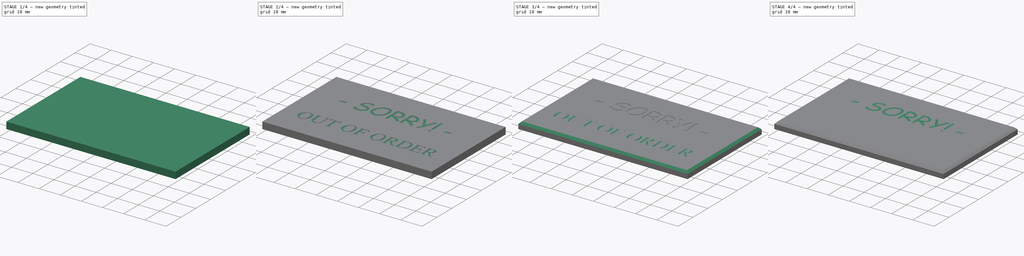
[diagram: build sequence overview — one tinted view per stage of 4, left to right]
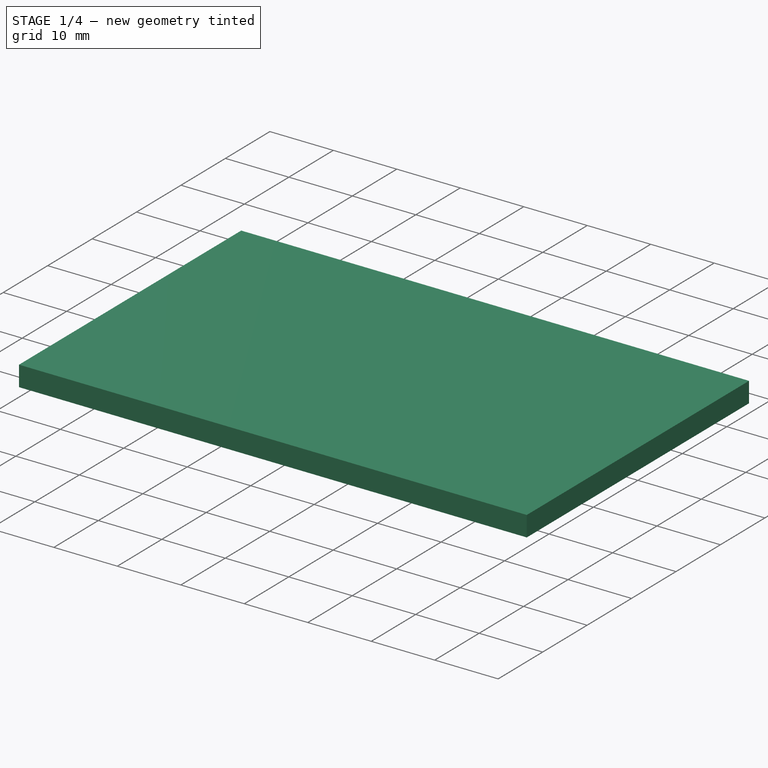
[diagram: stage 1 of 4 — iso view after this stage's code; geometry added in this stage tinted green]
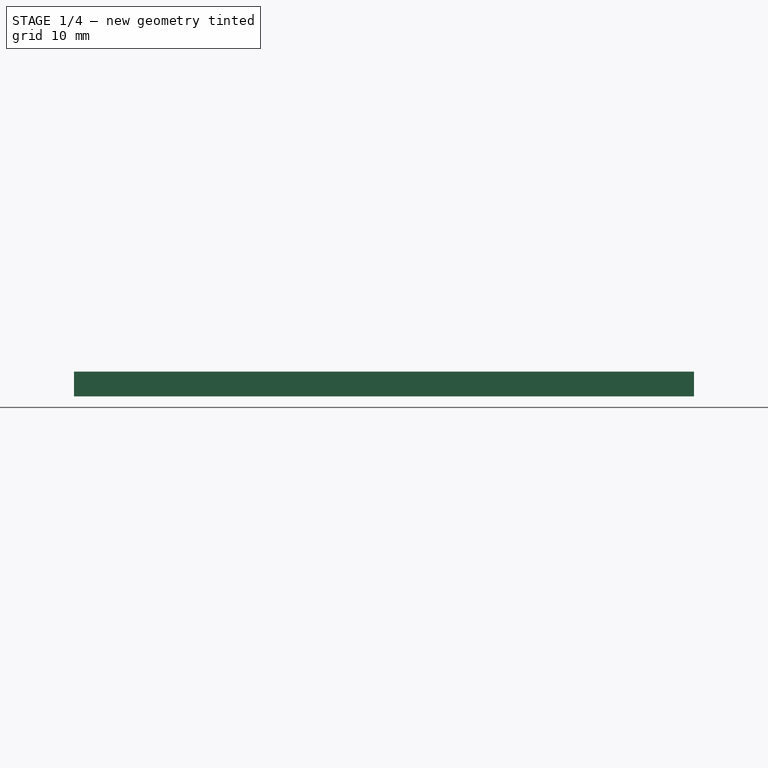
[diagram: stage 1 of 4 — front view after this stage's code; geometry added in this stage tinted green]
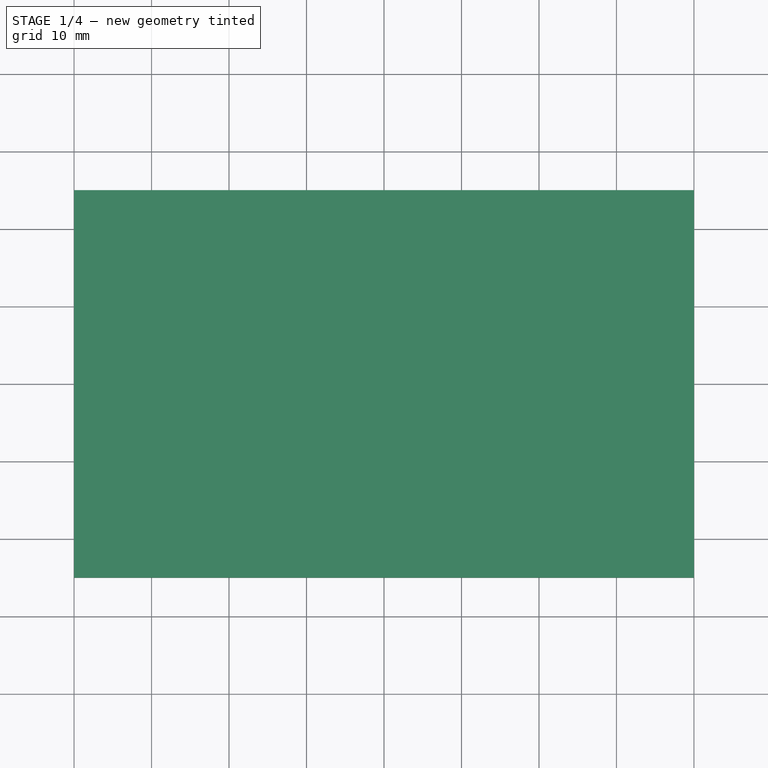
[diagram: stage 1 of 4 — top view after this stage's code; geometry added in this stage tinted green]
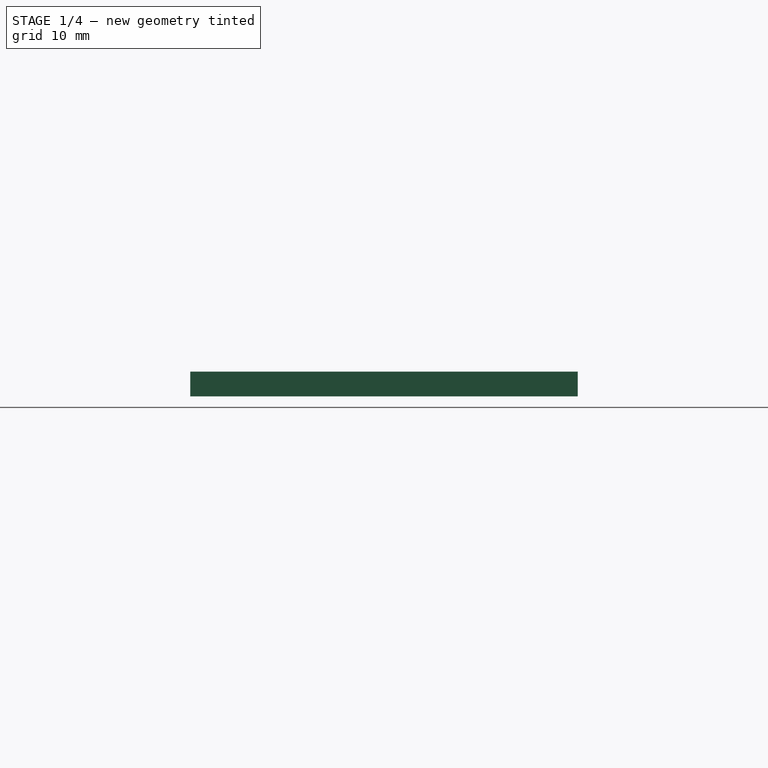
[diagram: stage 1 of 4 — right view after this stage's code; geometry added in this stage tinted green]
FCSTD DOCUMENT  (FreeCAD 1.0R39319 (Git))
Label: sign
License: All rights reserved
LicenseURL: https://en.wikipedia.org/wiki/All_rights_reserved
objects: PartDesign::Pad×6, Part::Part2DObjectPython×4, Sketcher::SketchObject×3, PartDesign::Body×3, PartDesign::Pocket×2, PartDesign::Chamfer×1
note: 40 computed .brp shape members not serialized (recipe doc carries the construction recipe); baked Part::Feature solids carry a one-line shape summary decoded from their .brp

FEATURE [Sketcher::SketchObject] Sketch
  ArcFitTolerance = 1e-06
  AttachmentSupport = -> [XY_Plane]
  FullyConstrained = true
  MakeInternals = false
  MapMode = 5
  sketch-geometry (4):
    g0: LineSegment StartX=-40 StartY=25 StartZ=0 EndX=-40 EndY=-25 EndZ=0
    g1: LineSegment StartX=-40 StartY=-25 StartZ=0 EndX=40 EndY=-25 EndZ=0
    g2: LineSegment StartX=40 StartY=-25 StartZ=0 EndX=40 EndY=25 EndZ=0
    g3: LineSegment StartX=40 StartY=25 StartZ=0 EndX=-40 EndY=25 EndZ=0
  constraints (11):
    c: Coincident(g0,g1)
    c: Coincident(g1,g2)
    c: Coincident(g2,g3)
    c: Coincident(g3,g0)
    c: Vertical(g0)
    c: Vertical(g2)
    c: Horizontal(g1)
    c: Horizontal(g3)
    c: Symmetric(g1,g0,g-1)
    c: DistanceX(g3,g3) = 80
    c: DistanceY(g0,g0) = 50
FEATURE [PartDesign::Pad] Pad
  Direction = (0,0,1)
  Length = 3
  Length2 = 10
  Profile = -> Sketch
  ReferenceAxis = -> Sketch [N_Axis]
  Refine = true
  Reversed = true
  Suppressed = false
  Type = 0
FEATURE [PartDesign::Body] Body001  label="Sorry"
  AllowCompound = false
  Group = -> [Sketch001,Pad003,ShapeString001,Pad004]
  Origin = -> Origin001
  Tip = -> Pad004
FEATURE [PartDesign::Pad] Pad005
  BaseFeature = -> Pad
  Direction = (0,0,1)
  Length = 0.2
  Length2 = 10
  Profile = -> Pad [Face5]
  Refine = true
  Suppressed = false
  Type = 0
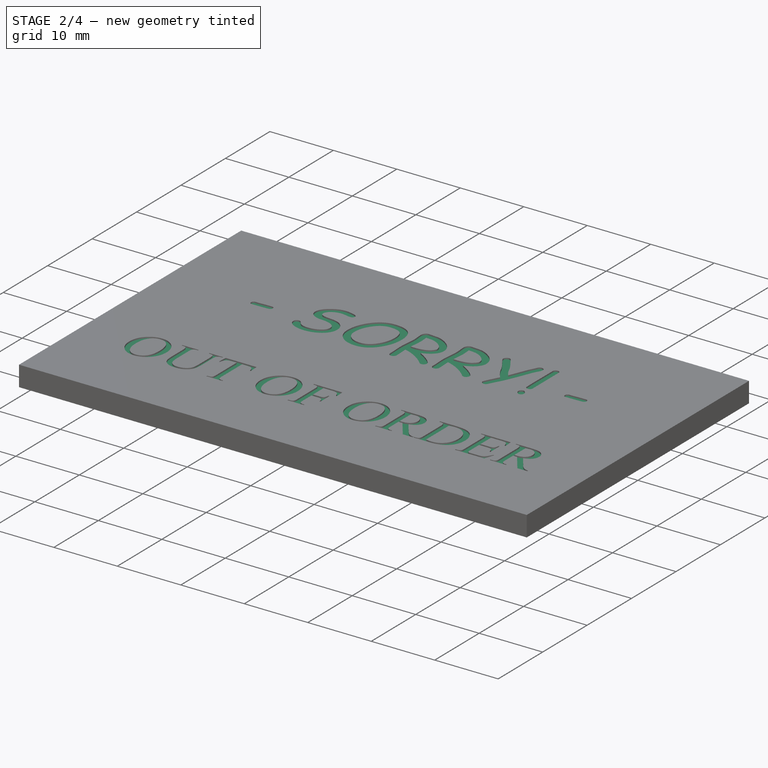
[diagram: stage 2 of 4 — iso view after this stage's code; geometry added in this stage tinted green]
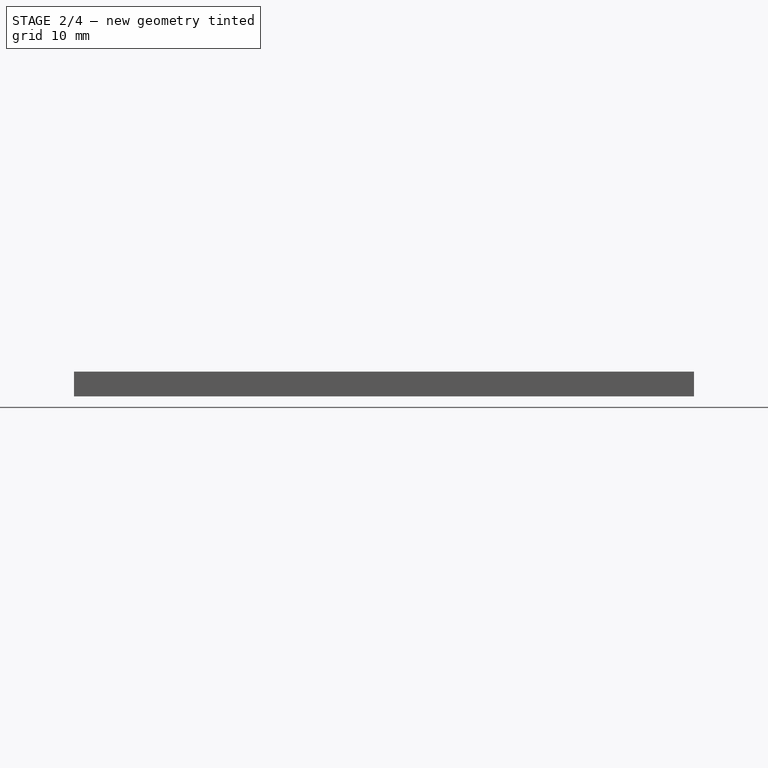
[diagram: stage 2 of 4 — front view after this stage's code; geometry added in this stage tinted green]
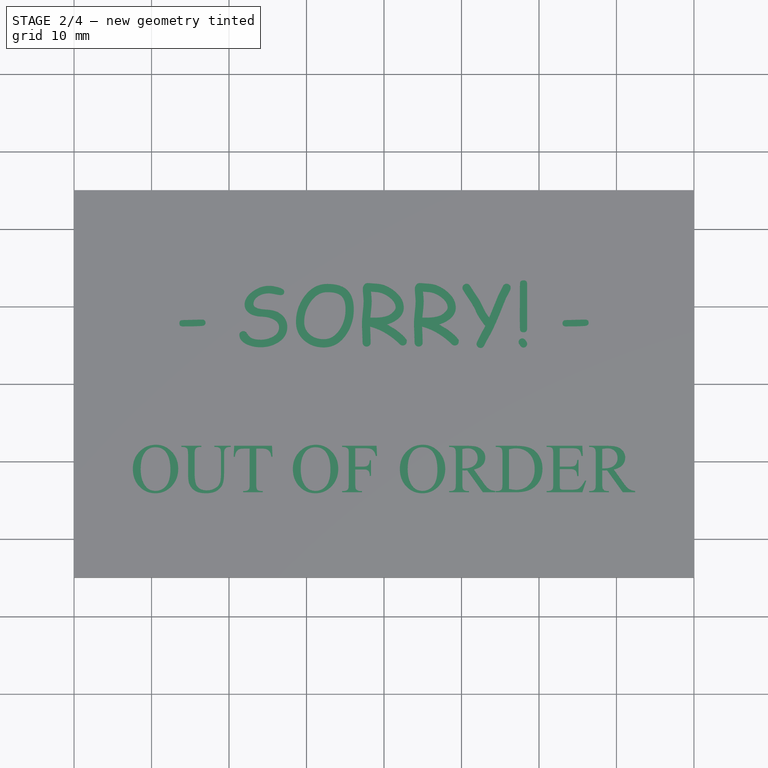
[diagram: stage 2 of 4 — top view after this stage's code; geometry added in this stage tinted green]
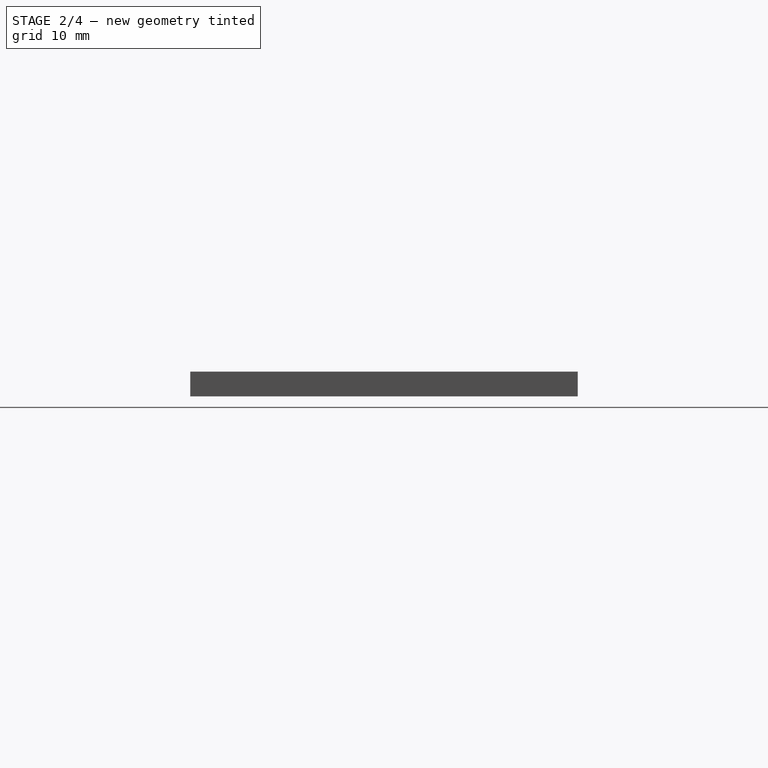
[diagram: stage 2 of 4 — right view after this stage's code; geometry added in this stage tinted green]
FEATURE [PartDesign::Body] Body002  label="OUT"
  AllowCompound = false
  Group = -> [Sketch002,Pad006,ShapeString,Pad007]
  Origin = -> Origin002
  Tip = -> Pad007
FEATURE [Part::Part2DObjectPython] ShapeString002  label="sorry001"  # Draft 2D object (typed FeaturePython)
  FontFile = <path>
  Fuse = false
  Justification = 4
  JustificationReference = 0
  KeepLeftMargin = false
  MakeFace = true
  ObliqueAngle = 0
  Placement = pos=(0,9,0) rot=(0,0,1;0rad)
  ScaleToSize = true
  Size = 8
  String = - SORRY! -
  Tracking = 0
FEATURE [Part::Part2DObjectPython] ShapeString003  label="out001"  # Draft 2D object (typed FeaturePython)
  FontFile = <path>
  Fuse = false
  Justification = 4
  JustificationReference = 0
  KeepLeftMargin = false
  MakeFace = true
  ObliqueAngle = 0
  Placement = pos=(0,-11,0) rot=(0,0,1;0rad)
  ScaleToSize = true
  Size = 6
  String = OUT OF ORDER
  Tracking = 0
FEATURE [PartDesign::Pocket] Pocket
  BaseFeature = -> Pad005
  Direction = (0,0,-1)
  Length = 5
  Length2 = 5
  Profile = -> ShapeString002
  ReferenceAxis = -> ShapeString002 [N_Axis]
  Refine = true
  Reversed = true
  Suppressed = false
  Type = 0
FEATURE [PartDesign::Pocket] Pocket001
  BaseFeature = -> Pocket
  Direction = (0,0,-1)
  Length = 5
  Length2 = 5
  Profile = -> ShapeString003
  ReferenceAxis = -> ShapeString003 [N_Axis]
  Refine = true
  Reversed = true
  Suppressed = false
  Type = 0
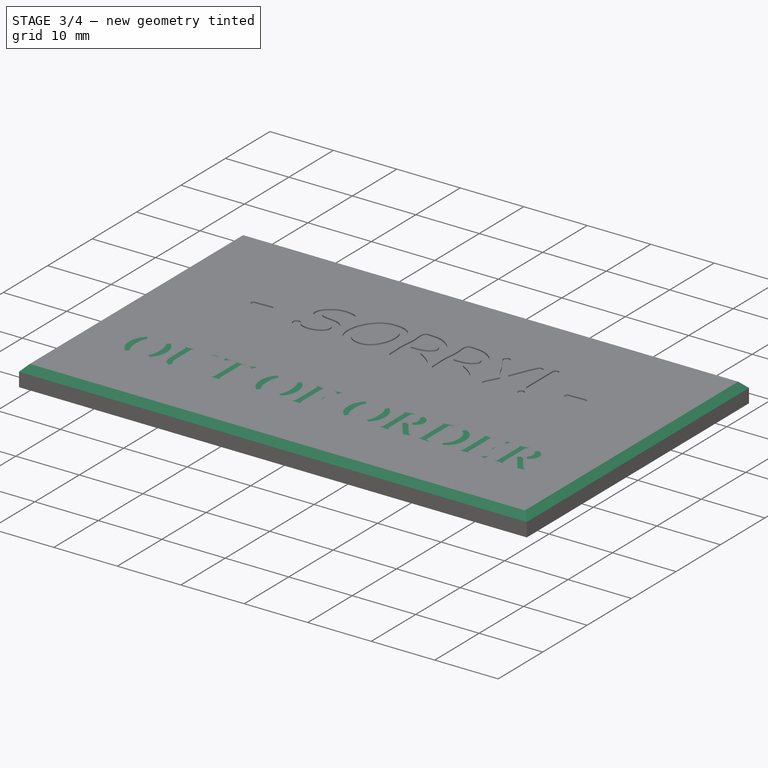
[diagram: stage 3 of 4 — iso view after this stage's code; geometry added in this stage tinted green]
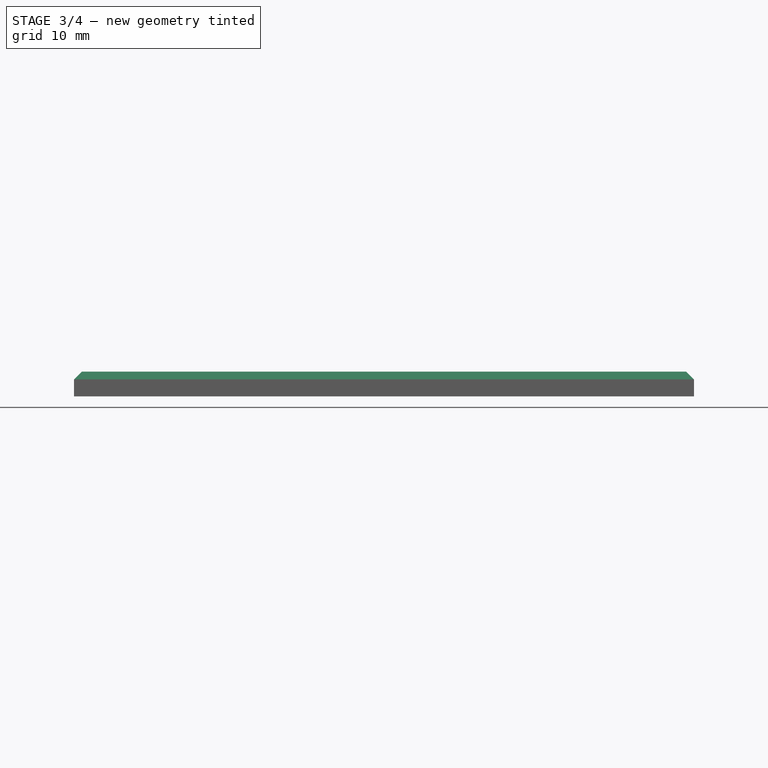
[diagram: stage 3 of 4 — front view after this stage's code; geometry added in this stage tinted green]
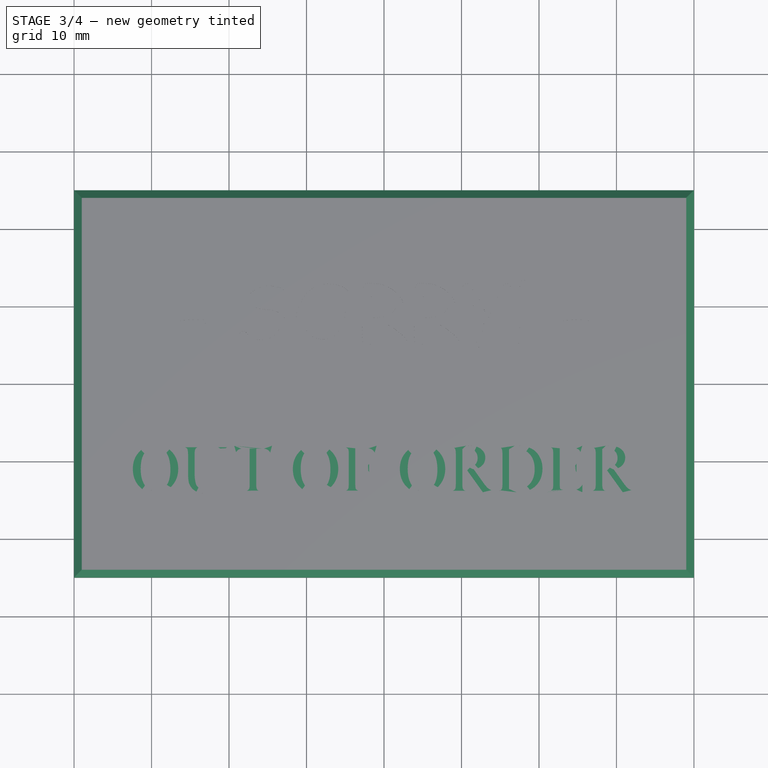
[diagram: stage 3 of 4 — top view after this stage's code; geometry added in this stage tinted green]
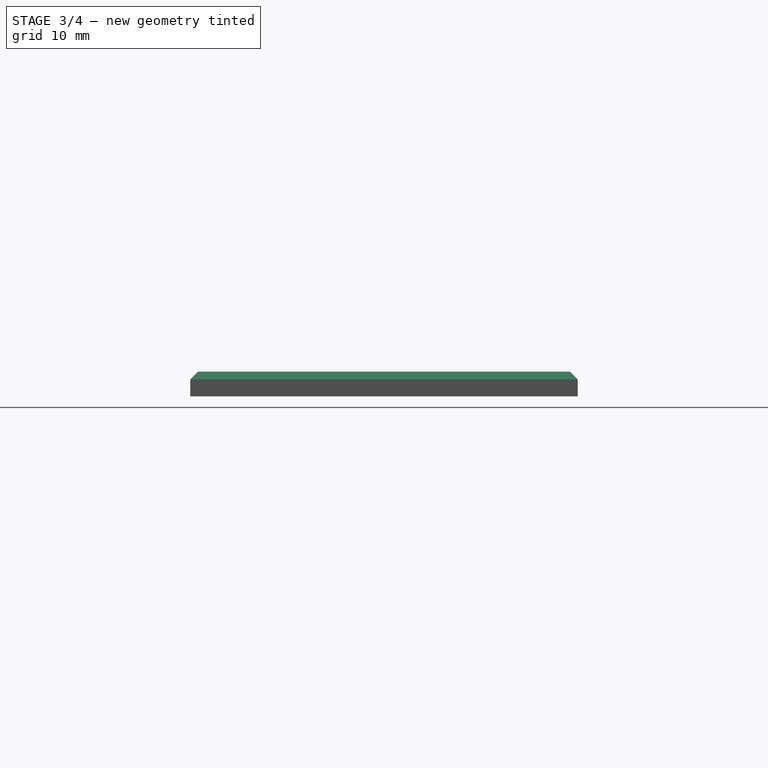
[diagram: stage 3 of 4 — right view after this stage's code; geometry added in this stage tinted green]
FEATURE [Sketcher::SketchObject] Sketch002
  ArcFitTolerance = 1e-06
  AttachmentSupport = -> [XY_Plane002]
  FullyConstrained = false
  MakeInternals = false
  MapMode = 5
  sketch-geometry (4):
    g0: LineSegment StartX=-34.2412 StartY=-6.49368 StartZ=0 EndX=-34.2412 EndY=-15.5726 EndZ=0
    g1: LineSegment StartX=-34.2412 StartY=-15.5726 StartZ=0 EndX=33.5221 EndY=-15.5726 EndZ=0
    g2: LineSegment StartX=33.5221 StartY=-15.5726 StartZ=0 EndX=33.5221 EndY=-6.49368 EndZ=0
    g3: LineSegment StartX=33.5221 StartY=-6.49368 StartZ=0 EndX=-34.2412 EndY=-6.49368 EndZ=0
  constraints (8):
    c: Coincident(g0,g1)
    c: Coincident(g1,g2)
    c: Coincident(g2,g3)
    c: Coincident(g3,g0)
    c: Vertical(g0)
    c: Vertical(g2)
    c: Horizontal(g1)
    c: Horizontal(g3)
FEATURE [PartDesign::Pad] Pad006
  Direction = (0,0,1)
  Length = 0.01
  Length2 = 10
  Profile = -> Sketch002
  ReferenceAxis = -> Sketch002 [N_Axis]
  Refine = true
  Reversed = true
  Suppressed = false
  Type = 0
FEATURE [PartDesign::Pad] Pad007
  BaseFeature = -> Pad006
  Direction = (0,0,1)
  Length = 0.2
  Length2 = 10
  Profile = -> ShapeString
  ReferenceAxis = -> ShapeString [N_Axis]
  Refine = true
  Suppressed = false
  Type = 0
FEATURE [PartDesign::Chamfer] Chamfer
  Angle = 45
  Base = -> Pocket001 [Edge12,Edge6,Edge9,Edge11]
  BaseFeature = -> Pocket001
  ChamferType = 0
  FlipDirection = false
  Refine = true
  Size = 1
  Size2 = 1
  SupportTransform = false
  Suppressed = false
  UseAllEdges = false
FEATURE [PartDesign::Body] Body  label="Sign"
  AllowCompound = false
  Group = -> [Sketch,Pad,Pad005,ShapeString002,ShapeString003,Pocket,Pocket001,Chamfer]
  Origin = -> Origin
  Tip = -> Chamfer
note: 4 file-system paths scrubbed to <path> (originals preserved in the JSON sidecar)
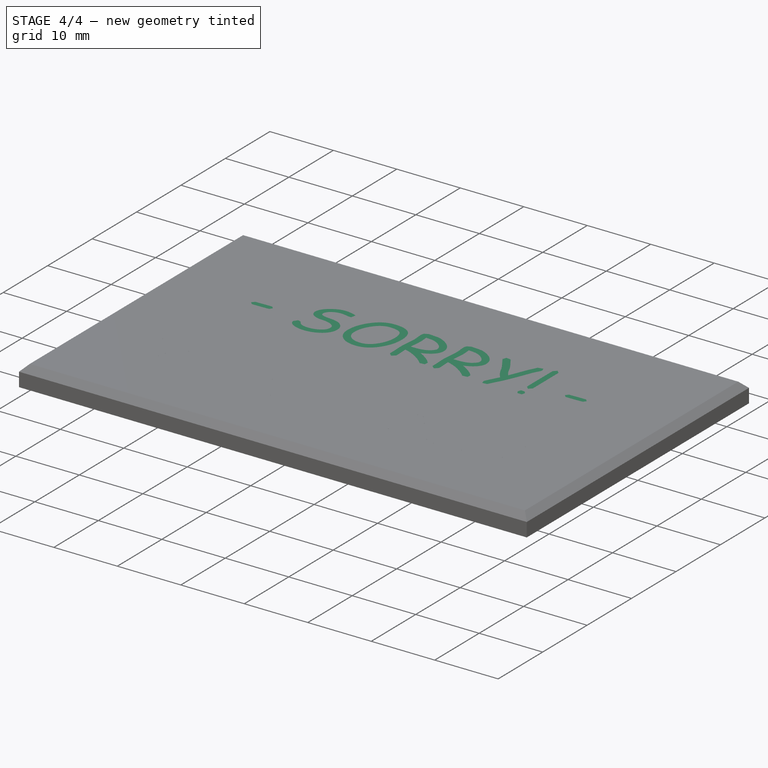
[diagram: stage 4 of 4 — iso view after this stage's code; geometry added in this stage tinted green]
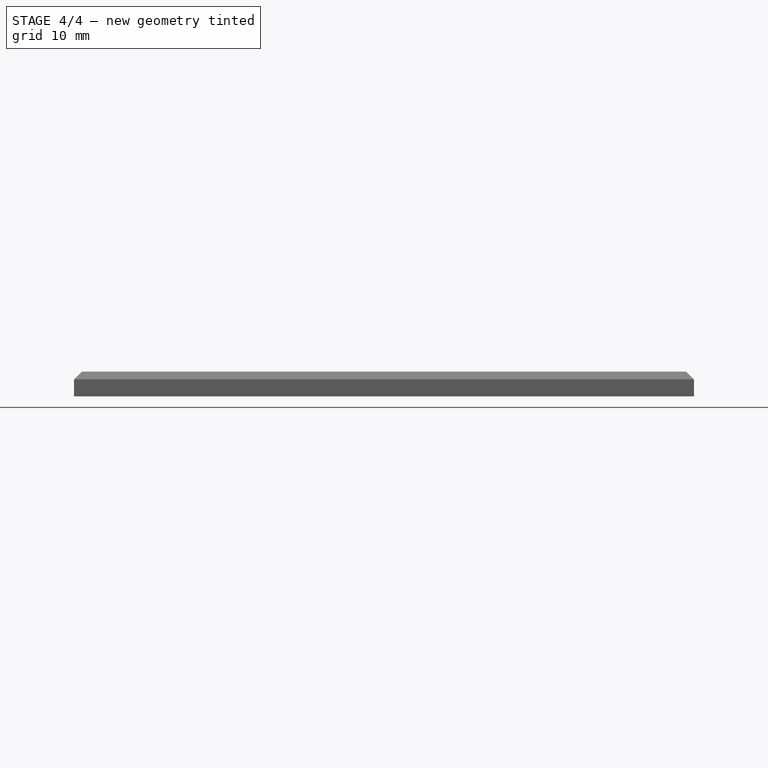
[diagram: stage 4 of 4 — front view after this stage's code; geometry added in this stage tinted green]
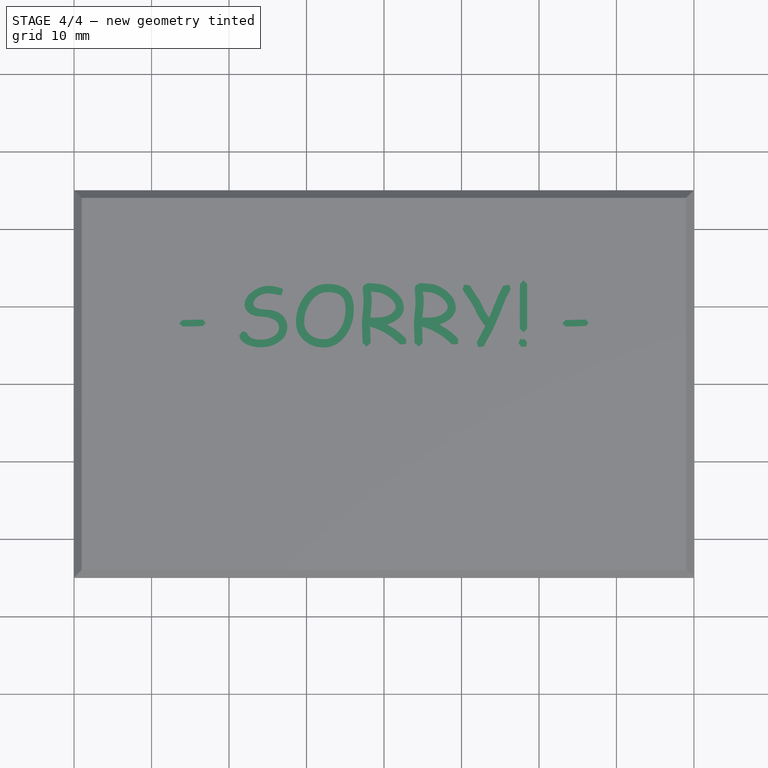
[diagram: stage 4 of 4 — top view after this stage's code; geometry added in this stage tinted green]
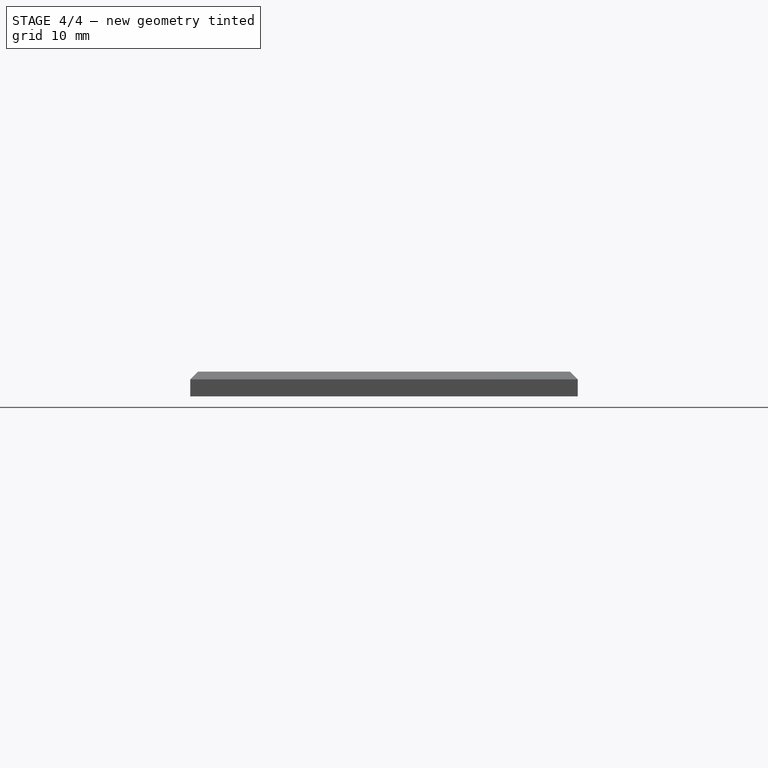
[diagram: stage 4 of 4 — right view after this stage's code; geometry added in this stage tinted green]
FEATURE [Part::Part2DObjectPython] ShapeString  label="out"  # Draft 2D object (typed FeaturePython)
  FontFile = <path>
  Fuse = false
  Justification = 4
  JustificationReference = 0
  KeepLeftMargin = false
  MakeFace = true
  ObliqueAngle = 0
  Placement = pos=(0,-11,0) rot=(0,0,1;0rad)
  ScaleToSize = true
  Size = 6
  String = OUT OF ORDER
  Tracking = 0
FEATURE [Part::Part2DObjectPython] ShapeString001  label="sorry"  # Draft 2D object (typed FeaturePython)
  FontFile = <path>
  Fuse = false
  Justification = 4
  JustificationReference = 0
  KeepLeftMargin = false
  MakeFace = true
  ObliqueAngle = 0
  Placement = pos=(0,9,0) rot=(0,0,1;0rad)
  ScaleToSize = true
  Size = 8
  String = - SORRY! -
  Tracking = 0
FEATURE [Sketcher::SketchObject] Sketch001
  ArcFitTolerance = 1e-06
  AttachmentSupport = -> [XY_Plane001]
  FullyConstrained = false
  MakeInternals = false
  MapMode = 5
  sketch-geometry (4):
    g0: LineSegment StartX=-28.9784 StartY=14.6318 StartZ=0 EndX=-28.9784 EndY=3.2126 EndZ=0
    g1: LineSegment StartX=-28.9784 StartY=3.2126 StartZ=0 EndX=27.3633 EndY=3.2126 EndZ=0
    g2: LineSegment StartX=27.3633 StartY=3.2126 StartZ=0 EndX=27.3633 EndY=14.6318 EndZ=0
    g3: LineSegment StartX=27.3633 StartY=14.6318 StartZ=0 EndX=-28.9784 EndY=14.6318 EndZ=0
  constraints (8):
    c: Coincident(g0,g1)
    c: Coincident(g1,g2)
    c: Coincident(g2,g3)
    c: Coincident(g3,g0)
    c: Vertical(g0)
    c: Vertical(g2)
    c: Horizontal(g1)
    c: Horizontal(g3)
FEATURE [PartDesign::Pad] Pad003
  Direction = (0,0,1)
  Length = 0.01
  Length2 = 10
  Profile = -> Sketch001
  ReferenceAxis = -> Sketch001 [N_Axis]
  Refine = true
  Reversed = true
  Suppressed = false
  Type = 0
FEATURE [PartDesign::Pad] Pad004
  BaseFeature = -> Pad003
  Direction = (0,0,1)
  Length = 0.2
  Length2 = 10
  Profile = -> ShapeString001
  ReferenceAxis = -> ShapeString001 [N_Axis]
  Refine = true
  Suppressed = false
  Type = 0
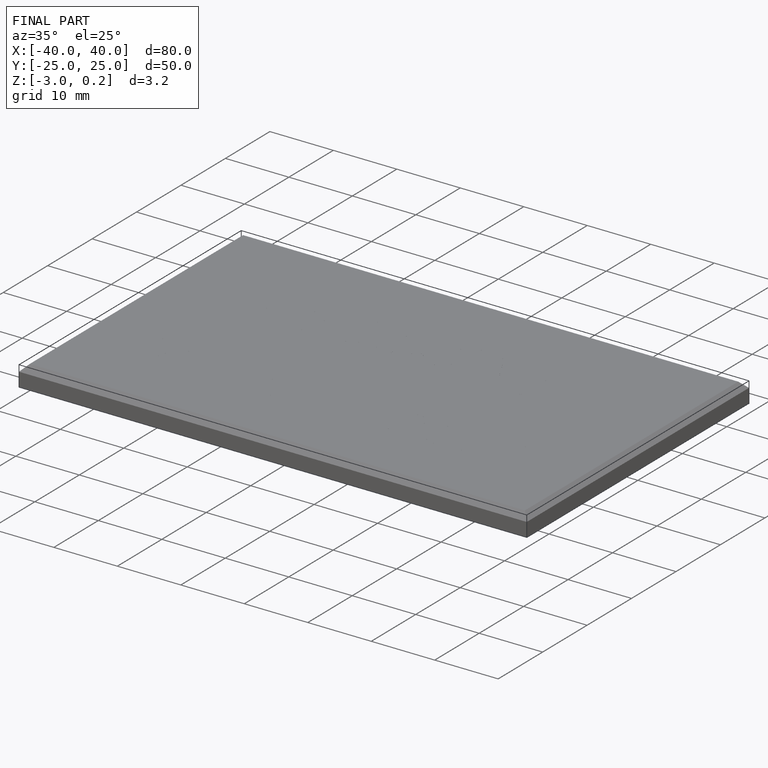
[diagram: finished part — iso view with bounding-box wireframe]
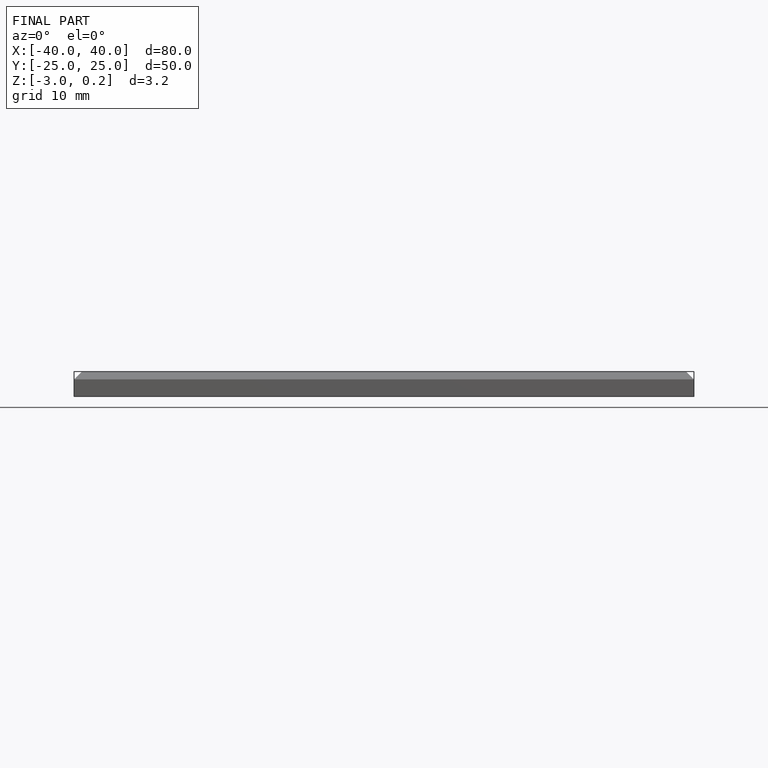
[diagram: finished part — front view with bounding-box wireframe]
